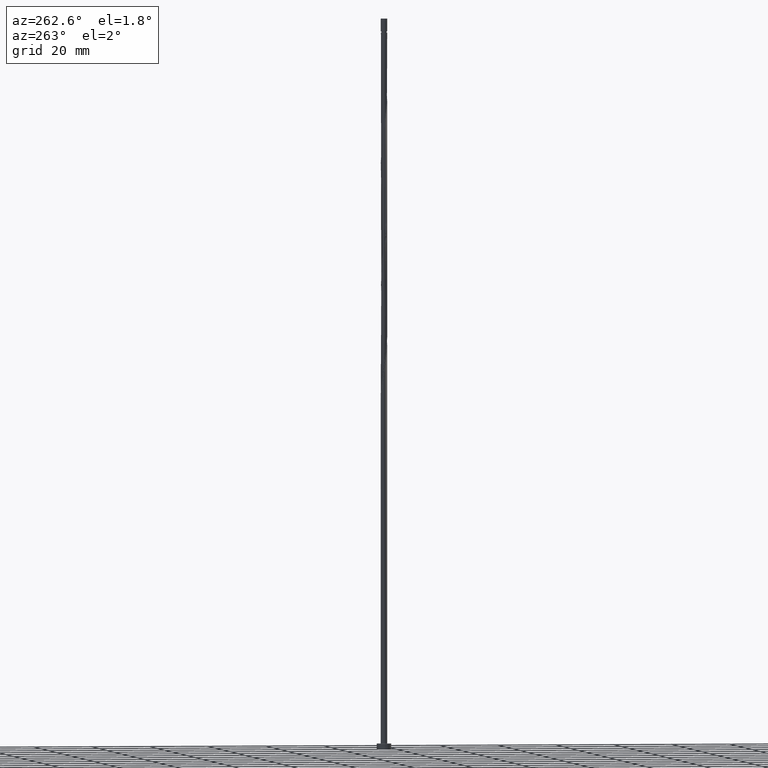
[diagram: clean part render]
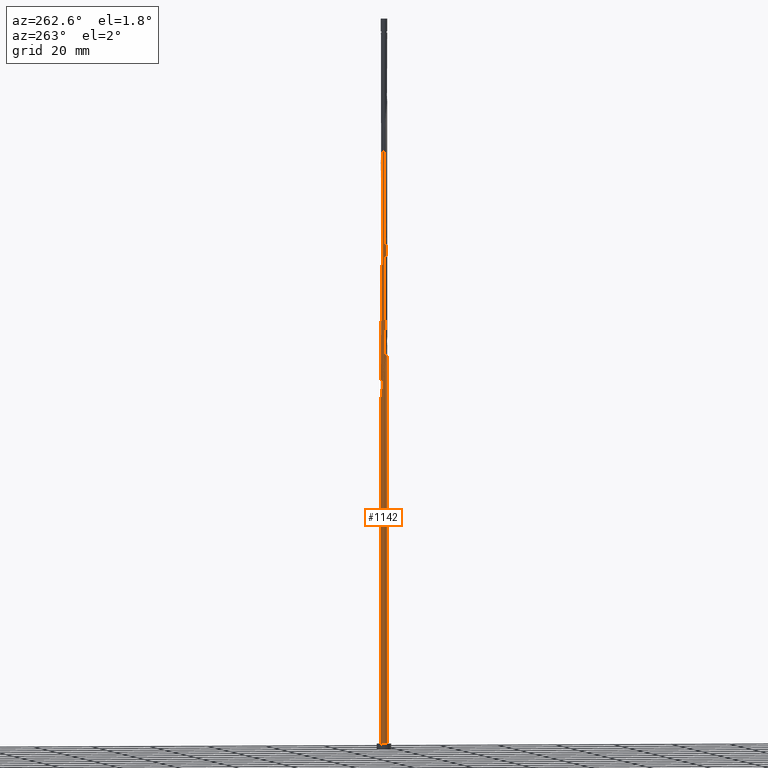
[diagram: same view with one face highlighted and labeled with its STEP entity id]
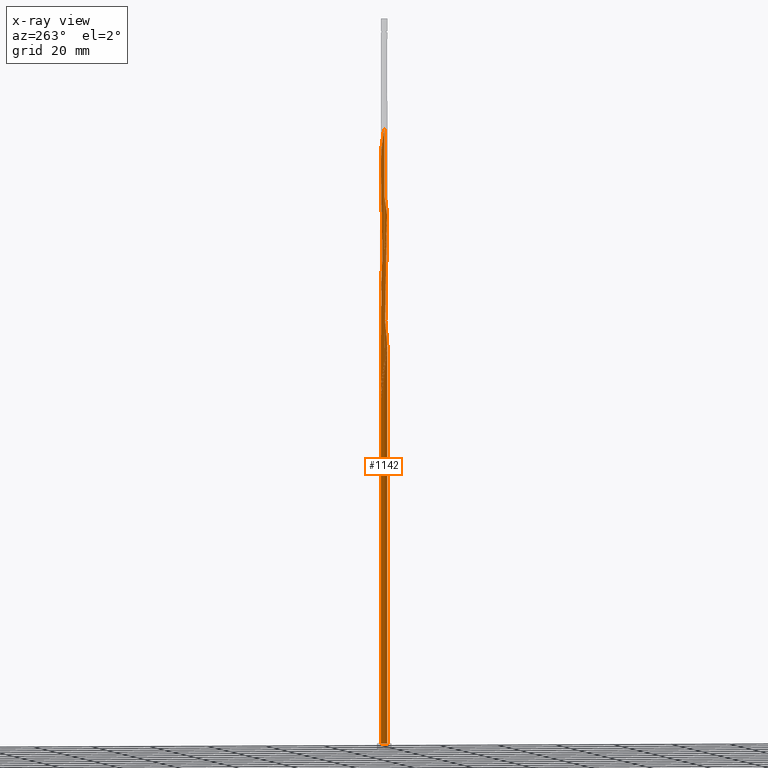
[diagram: x-ray of the same camera — body ghosted, the highlighted face saturated]
A machine part, auxiliary view. The second image highlights one B-rep face of the part: STEP entity #1142.
The next image is the same camera in x-ray: the body ghosted, the highlighted face saturated — about 0% of this face is hidden behind the body in this view.
In plain terms, the highlighted cylindrical surface (bore or boss wall) has radius 1.1 mm, axis along (-0, -0, -1).
Its self-contained STEP definition (entity closure, byte-faithful):
#5 = CARTESIAN_POINT ( 'NONE',  ( -1.100000000000002087, -7.216240342310404212E-16, 212.6281750762028935 ) ) ;
#15 = CARTESIAN_POINT ( 'NONE',  ( -0.08800433824986052256, 1.104578936536840139, 202.7381482341460242 ) ) ;
#16 = VECTOR ( 'NONE', #84, 1000.000000000000000 ) ;
#22 = VERTEX_POINT ( 'NONE', #221 ) ;
#57 = CARTESIAN_POINT ( 'NONE',  ( -0.7628288044120180578, -0.7925226906274263072, 134.6291738751716878 ) ) ;
#66 = CARTESIAN_POINT ( 'NONE',  ( 0.2188972361634580477, -1.078000000000001624, 141.0394302854280681 ) ) ;
#74 = CARTESIAN_POINT ( 'NONE',  ( -0.3071477027034155149, -1.056248213595657459, 137.8343020802998637 ) ) ;
#84 = DIRECTION ( 'NONE',  ( -0.000000000000000000, -0.000000000000000000, -1.000000000000000000 ) ) ;
#87 = CARTESIAN_POINT ( 'NONE',  ( -1.064006015414472595, 0.3094036033298087074, 169.0843020802998637 ) ) ;
#95 = CARTESIAN_POINT ( 'NONE',  ( -0.1788959498336609999, -1.093542696800067437, 180.3022507982486218 ) ) ;
#101 = CARTESIAN_POINT ( 'NONE',  ( -1.085917561661207564, -0.2205049656298697092, 172.2894302854280397 ) ) ;
#109 = CARTESIAN_POINT ( 'NONE',  ( 0.4353994555731701133, 1.018953730391247703, 157.8663533623512478 ) ) ;
#114 = LINE ( 'NONE', #1030, #1374 ) ;
#120 = CARTESIAN_POINT ( 'NONE',  ( 0.9303254799112119500, 0.5869365395236323391, 195.5266097726075429 ) ) ;
#121 = DIRECTION ( 'NONE',  ( -0.000000000000000000, -0.000000000000000000, -1.000000000000000000 ) ) ;
#126 = CARTESIAN_POINT ( 'NONE',  ( -0.9590428054949424741, 0.5550462033200856959, 209.1484046444024614 ) ) ;
#152 = CARTESIAN_POINT ( 'NONE',  ( -1.085569539318544940, 0.1775915969400755356, 128.2189174649152505 ) ) ;
#173 = CARTESIAN_POINT ( 'NONE',  ( -0.4353994555731699467, -1.018953730391247703, 137.0330200290178482 ) ) ;
#177 = VERTEX_POINT ( 'NONE', #1687 ) ;
#182 = CARTESIAN_POINT ( 'NONE',  ( -1.001592478565782152, -0.4739745747106117180, 132.2253277213254989 ) ) ;
#186 = CARTESIAN_POINT ( 'NONE',  ( -0.4705187664120752400, 0.9942897417021168138, 121.8086610546588560 ) ) ;
#214 = EDGE_CURVE ( 'NONE', #177, #551, #492, .T. ) ;
#218 = CARTESIAN_POINT ( 'NONE',  ( -1.011524410454707423, 0.4322249033249474515, 168.2830200290178482 ) ) ;
#221 = CARTESIAN_POINT ( 'NONE',  ( -1.100000000000001865, -1.106739451463149244E-15, 131.9506854946532712 ) ) ;
#222 = DIRECTION ( 'NONE',  ( -1.000000000000000000, 0.000000000000000000, 0.000000000000000000 ) ) ;
#224 = ORIENTED_EDGE ( 'NONE', *, *, #214, .T. ) ;
#226 = CARTESIAN_POINT ( 'NONE',  ( 0.7628288044120180578, 0.7925226906274259742, 155.4625072085050590 ) ) ;
#237 = AXIS2_PLACEMENT_3D ( 'NONE', #998, #1405, #222 ) ;
#240 = CARTESIAN_POINT ( 'NONE',  ( 0.5912473987470951986, -0.9371584199410714078, 185.1099431059408857 ) ) ;
#250 = CARTESIAN_POINT ( 'NONE',  ( -0.5509992915702817129, 0.9520503036547238729, 125.0137892597870888 ) ) ;
#260 = CARTESIAN_POINT ( 'NONE',  ( 0.08800433824986110543, 1.104578936536840139, 121.0073790033768120 ) ) ;
#264 = EDGE_CURVE ( 'NONE', #1356, #1663, #114, .T. ) ;
#285 = EDGE_CURVE ( 'NONE', #22, #551, #683, .T. ) ;
#308 = CARTESIAN_POINT ( 'NONE',  ( -1.100000000000002087, 1.323600560195794635E-15, 129.2948417428695507 ) ) ;
#319 = CARTESIAN_POINT ( 'NONE',  ( 0.6947954562229508024, -0.8527949777126651032, 144.2445584905562441 ) ) ;
#350 = CARTESIAN_POINT ( 'NONE',  ( 0.9590428054949423631, -0.5550462033200859180, 146.6484046444024614 ) ) ;
#360 = CARTESIAN_POINT ( 'NONE',  ( -0.7628288044120180578, -0.7925226906274263072, 176.2958405418383165 ) ) ;
#365 = CYLINDRICAL_SURFACE ( 'NONE', #237, 1.100000000000000089 ) ;
#366 = ORIENTED_EDGE ( 'NONE', *, *, #829, .F. ) ;
#367 = CARTESIAN_POINT ( 'NONE',  ( 1.085569539318544940, -0.1775915969400755912, 190.7189174649152505 ) ) ;
#373 = EDGE_CURVE ( 'NONE', #1356, #1024, #973, .T. ) ;
#380 = CARTESIAN_POINT ( 'NONE',  ( 0.9590428054949423631, -0.5550462033200859180, 188.3150713110691754 ) ) ;
#387 = ORIENTED_EDGE ( 'NONE', *, *, #373, .F. ) ;
#389 = CARTESIAN_POINT ( 'NONE',  ( -0.5509992915702820460, -0.9520503036547232067, 177.8984046444024330 ) ) ;
#395 = ORIENTED_EDGE ( 'NONE', *, *, #285, .F. ) ;
#402 = CARTESIAN_POINT ( 'NONE',  ( 0.2188972361634584640, 1.078000000000001846, 120.2060969520947538 ) ) ;
#408 = AXIS2_PLACEMENT_3D ( 'NONE', #1714, #1595, #774 ) ;
#411 = CARTESIAN_POINT ( 'NONE',  ( -1.001592478565782596, 0.4739745747106118290, 129.0201995161973230 ) ) ;
#420 = CARTESIAN_POINT ( 'NONE',  ( -1.085917561661207564, -0.2205049656298697092, 130.6227636187613825 ) ) ;
#444 = CIRCLE ( 'NONE', #935, 1.100000000000000089 ) ;
#467 = CARTESIAN_POINT ( 'NONE',  ( 0.8786931595968741071, -0.6617388694021727469, 145.8471225931203890 ) ) ;
#470 = EDGE_LOOP ( 'NONE', ( #366, #387, #1218, #1193, #1582, #987, #1340, #224, #395 ) ) ;
#489 = CARTESIAN_POINT ( 'NONE',  ( -0.8786931595968743292, 0.6617388694021726359, 166.6804559264537602 ) ) ;
#492 = CIRCLE ( 'NONE', #408, 1.100000000000000089 ) ;
#499 = CARTESIAN_POINT ( 'NONE',  ( 0.7628288044120180578, 0.7925226906274259742, 197.1291738751716878 ) ) ;
#510 = CARTESIAN_POINT ( 'NONE',  ( -0.6665991275673939231, -0.8851468769181990437, 177.0971225931203605 ) ) ;
#519 = CARTESIAN_POINT ( 'NONE',  ( -0.5912473987470956427, 0.9371584199410714078, 164.2766097726075145 ) ) ;
#533 = CARTESIAN_POINT ( 'NONE',  ( -1.085917561661207564, 0.2205049656298699312, 130.6227636187614110 ) ) ;
#537 = CARTESIAN_POINT ( 'NONE',  ( -0.2188972361634579367, 1.078000000000001624, 203.5394302854280966 ) ) ;
#551 = VERTEX_POINT ( 'NONE', #1263 ) ;
#555 = CARTESIAN_POINT ( 'NONE',  ( -1.011524410454707423, 0.4322249033249474515, 209.9496866956845054 ) ) ;
#558 = CARTESIAN_POINT ( 'NONE',  ( -0.5912473987470956427, 0.9371584199410714078, 122.6099431059409000 ) ) ;
#567 = CARTESIAN_POINT ( 'NONE',  ( -0.7983435136988059622, 0.7684315354842591317, 124.2125072085050022 ) ) ;
#595 = CARTESIAN_POINT ( 'NONE',  ( 0.7983435136988059622, -0.7684315354842593537, 145.0458405418383165 ) ) ;
#599 = CARTESIAN_POINT ( 'NONE',  ( -1.100000000000001865, 0.08938208239075068340, 128.7551410055212386 ) ) ;
#605 = CARTESIAN_POINT ( 'NONE',  ( -0.9303254799112120610, -0.5869365395236322280, 133.0266097726075714 ) ) ;
#620 = CARTESIAN_POINT ( 'NONE',  ( -1.085569539318544940, 0.1775915969400755356, 169.8855841315819362 ) ) ;
#626 = CARTESIAN_POINT ( 'NONE',  ( 1.096525312441912314, 0.08736268753976340895, 192.3214815674793954 ) ) ;
#632 = LINE ( 'NONE', #1682, #16 ) ;
#633 = CARTESIAN_POINT ( 'NONE',  ( -0.8590584812566417483, -0.6998985043366530157, 175.4945584905562725 ) ) ;
#644 = CARTESIAN_POINT ( 'NONE',  ( 0.1788959498336611109, 1.093542696800067437, 159.4689174649152221 ) ) ;
#647 = CARTESIAN_POINT ( 'NONE',  ( -1.096525312441912758, 0.08736268753976413060, 131.4240456700434549 ) ) ;
#652 = CARTESIAN_POINT ( 'NONE',  ( -0.08800433824986052256, 1.104578936536840139, 161.0714815674793101 ) ) ;
#656 = CARTESIAN_POINT ( 'NONE',  ( -0.04544580579189982927, 1.099060816668453899, 121.8086610546588560 ) ) ;
#661 = CARTESIAN_POINT ( 'NONE',  ( -1.100000000000001199, 0.08938208239075497163, 212.0884743388545246 ) ) ;
#663 = CARTESIAN_POINT ( 'NONE',  ( -1.100000000000001865, 0.04375044337044674964, 131.6865145790202973 ) ) ;
#676 = CARTESIAN_POINT ( 'NONE',  ( -1.064006015414472595, 0.3094036033298087074, 210.7509687469665494 ) ) ;
#683 =( BOUNDED_CURVE ( )  B_SPLINE_CURVE ( 2, ( #915, #663, #647, #533, #1191, #411, #901, #1048, #933, #1166, #250, #1568, #1585, #1694, #656, #260, #402 ),
 .UNSPECIFIED., .F., .T. ) 
 B_SPLINE_CURVE_WITH_KNOTS ( ( 3, 2, 2, 2, 2, 2, 2, 2, 3 ),
 ( 0.9295271625973833274, 0.9326923076923077094, 0.9423076923076922906, 0.9519230769230768718, 0.9615384615384615641, 0.9711538461538461453, 0.9807692307692307265, 0.9903846153846154188, 1.000000000000000000 ),
 .UNSPECIFIED. ) 
 CURVE ( )  GEOMETRIC_REPRESENTATION_ITEM ( )  RATIONAL_B_SPLINE_CURVE ( ( 0.9061636035683366952, 0.9069090390691254555, 0.9090909090909821133, 0.9024626128164852101, 0.9090909090909821133, 0.9024626128164852101, 0.9090909090909821133, 0.9024626128164852101, 0.9090909090909821133, 0.9024626128164852101, 0.9090909090909821133, 0.9024626128164852101, 0.9090909090909821133, 0.9024626128164852101, 0.9090909090909821133, 0.9024626128164852101, 0.9090909090909821133 ) ) 
 REPRESENTATION_ITEM ( '' )  );
#684 = CARTESIAN_POINT ( 'NONE',  ( 0.3071477027034160145, 1.056248213595657237, 200.3343020802998637 ) ) ;
#686 = CARTESIAN_POINT ( 'NONE',  ( -1.100000000000002087, 1.323600560195794635E-15, 129.2948417428695507 ) ) ;
#692 = CARTESIAN_POINT ( 'NONE',  ( -0.3497901340770550593, 1.051421063463162442, 204.3407123367101406 ) ) ;
#727 = CARTESIAN_POINT ( 'NONE',  ( 1.085917561661207564, 0.2205049656298696537, 151.4560969520947538 ) ) ;
#736 = CARTESIAN_POINT ( 'NONE',  ( 1.107133063222617286, -0.04577959055034185043, 149.8535328495306658 ) ) ;
#743 = DIRECTION ( 'NONE',  ( 1.000000000000000000, 0.000000000000000000, 0.000000000000000000 ) ) ;
#748 = CARTESIAN_POINT ( 'NONE',  ( -0.2188972361634579367, 1.078000000000001624, 161.8727636187614394 ) ) ;
#754 = CARTESIAN_POINT ( 'NONE',  ( 0.8786931595968741071, -0.6617388694021727469, 187.5137892597870746 ) ) ;
#764 = CARTESIAN_POINT ( 'NONE',  ( 1.107133063222617286, -0.04577959055034185043, 191.5201995161973514 ) ) ;
#774 = DIRECTION ( 'NONE',  ( 0.000000000000000000, 1.000000000000000000, -1.009293658750142218E-13 ) ) ;
#777 = CARTESIAN_POINT ( 'NONE',  ( 1.064006015414472150, -0.3094036033298094290, 189.9176354136331781 ) ) ;
#801 = CARTESIAN_POINT ( 'NONE',  ( -0.8786931595968743292, 0.6617388694021726359, 208.3471225931204742 ) ) ;
#811 = CARTESIAN_POINT ( 'NONE',  ( -0.6947954562229508024, 0.8527949777126651032, 123.4112251572229582 ) ) ;
#819 = AXIS2_PLACEMENT_3D ( 'NONE', #1049, #1586, #923 ) ;
#829 = EDGE_CURVE ( 'NONE', #1024, #22, #632, .T. ) ;
#835 = CARTESIAN_POINT ( 'NONE',  ( -1.043755020113495080, -0.3472397701702404915, 131.4240456700434549 ) ) ;
#849 = CARTESIAN_POINT ( 'NONE',  ( -0.2188972361634579089, 1.078000000000001624, 120.2060969520947538 ) ) ;
#866 = CARTESIAN_POINT ( 'NONE',  ( -0.5509992915702820460, -0.9520503036547232067, 136.2317379777357473 ) ) ;
#875 = CARTESIAN_POINT ( 'NONE',  ( 1.064006015414472150, -0.3094036033298094290, 148.2509687469665494 ) ) ;
#882 = CARTESIAN_POINT ( 'NONE',  ( 0.3497901340770547818, -1.051421063463162442, 183.5073790033767978 ) ) ;
#889 = CARTESIAN_POINT ( 'NONE',  ( 1.100000000000000089, 0.000000000000000000, 2.000000000000000000 ) ) ;
#892 = CARTESIAN_POINT ( 'NONE',  ( 0.9303254799112119500, 0.5869365395236323391, 153.8599431059409142 ) ) ;
#901 = CARTESIAN_POINT ( 'NONE',  ( -0.9303254799112120610, 0.5869365395236326721, 128.2189174649152505 ) ) ;
#915 = CARTESIAN_POINT ( 'NONE',  ( -1.100000000000001865, -1.106739451463149244E-15, 131.9506854946532712 ) ) ;
#919 =( BOUNDED_CURVE ( )  B_SPLINE_CURVE ( 2, ( #849, #1238, #186, #558, #811, #567, #1086, #1368, #1225, #1122, #152, #599, #686 ),
 .UNSPECIFIED., .F., .T. ) 
 B_SPLINE_CURVE_WITH_KNOTS ( ( 3, 2, 2, 2, 2, 2, 3 ),
 ( 0.000000000000000000, 0.009615384615384581224, 0.01923076923076927347, 0.02884615384615385469, 0.03846153846153843592, 0.04807692307692312816, 0.05452716259738319554 ),
 .UNSPECIFIED. ) 
 CURVE ( )  GEOMETRIC_REPRESENTATION_ITEM ( )  RATIONAL_B_SPLINE_CURVE ( ( 0.9090909090909813361, 0.9024626128164844330, 0.9090909090909813361, 0.9024626128164844330, 0.9090909090909813361, 0.9024626128164844330, 0.9090909090909813361, 0.9024626128164844330, 0.9090909090909813361, 0.9024626128164844330, 0.9090909090909813361, 0.9046444828383412018, 0.9061636035683358070 ) ) 
 REPRESENTATION_ITEM ( '' )  );
#923 = DIRECTION ( 'NONE',  ( 1.000000000000000000, 0.000000000000000000, 0.000000000000000000 ) ) ;
#933 = CARTESIAN_POINT ( 'NONE',  ( -0.7628288044120180578, 0.7925226906274266403, 126.6163533623511910 ) ) ;
#935 = AXIS2_PLACEMENT_3D ( 'NONE', #1140, #1015, #743 ) ;
#940 = CARTESIAN_POINT ( 'NONE',  ( -1.096525312441912314, -0.08736268753976379753, 129.8214815674793670 ) ) ;
#941 = CARTESIAN_POINT ( 'NONE',  ( -1.100000000000000089, 0.000000000000000000, 2.000000000000000000 ) ) ;
#973 =( BOUNDED_CURVE ( )  B_SPLINE_CURVE ( 2, ( #308, #1135, #940, #420, #835, #182, #605, #1666, #57, #1363, #866, #173, #74, #1128, #1233, #1109, #66, #1539, #1398, #1510, #319, #595, #467, #350, #1659, #875, #980, #736, #1522, #727, #1255, #1264, #892, #1423, #226, #1291, #1034, #109, #1676, #644, #1171, #652, #748, #1670, #1164, #519, #1558, #1275, #489, #1690, #218, #87, #620, #1699, #1004, #101, #1286, #1574, #1143, #633, #360, #510, #389, #1547, #1018, #95, #1026, #1417, #1012, #882, #1565, #240, #1407, #1553, #754, #380, #1438, #777, #367, #764, #626, #1301, #1150, #1154, #120, #1685, #499, #1333, #1718, #1188, #684, #1461, #1045, #15, #537, #692, #1081, #1591, #1214, #1618, #801, #126, #555, #676, #1196, #661, #5 ),
 .UNSPECIFIED., .F., .T. ) 
 B_SPLINE_CURVE_WITH_KNOTS ( ( 3, 2, 2, 2, 2, 2, 2, 2, 2, 2, 2, 2, 2, 2, 2, 2, 2, 2, 2, 2, 2, 2, 2, 2, 2, 2, 2, 2, 2, 2, 2, 2, 2, 2, 2, 2, 2, 2, 2, 2, 2, 2, 2, 2, 2, 2, 2, 2, 2, 2, 2, 2, 2, 3 ),
 ( 0.05452716259738319554, 0.05769230769230770939, 0.06730769230769229061, 0.07692307692307687184, 0.08653846153846156408, 0.09615384615384614531, 0.1057692307692307265, 0.1153846153846154188, 0.1250000000000000000, 0.1346153846153845812, 0.1442307692307692735, 0.1538461538461538547, 0.1634615384615384359, 0.1730769230769231282, 0.1826923076923077094, 0.1923076923076922906, 0.2019230769230768718, 0.2115384615384615641, 0.2211538461538461453, 0.2307692307692307265, 0.2403846153846154188, 0.2500000000000000000, 0.2596153846153845812, 0.2692307692307692735, 0.2788461538461538547, 0.2884615384615384359, 0.2980769230769231282, 0.3076923076923077094, 0.3173076923076922906, 0.3269230769230768718, 0.3365384615384615641, 0.3461538461538461453, 0.3557692307692307265, 0.3653846153846154188, 0.3750000000000000000, 0.3846153846153845812, 0.3942307692307692735, 0.4038461538461538547, 0.4134615384615384359, 0.4230769230769231282, 0.4326923076923077094, 0.4423076923076922906, 0.4519230769230768718, 0.4615384615384615641, 0.4711538461538461453, 0.4807692307692307265, 0.4903846153846154188, 0.5000000000000000000, 0.5096153846153845812, 0.5192307692307691624, 0.5288461538461538547, 0.5384615384615384359, 0.5480769230769231282, 0.5545271625973828833 ),
 .UNSPECIFIED. ) 
 CURVE ( )  GEOMETRIC_REPRESENTATION_ITEM ( )  RATIONAL_B_SPLINE_CURVE ( ( 0.9061636035683358070, 0.9069090390691245673, 0.9090909090909813361, 0.9024626128164844330, 0.9090909090909813361, 0.9024626128164844330, 0.9090909090909813361, 0.9024626128164844330, 0.9090909090909813361, 0.9024626128164844330, 0.9090909090909813361, 0.9024626128164844330, 0.9090909090909813361, 0.9024626128164844330, 0.9090909090909813361, 0.9024626128164844330, 0.9090909090909813361, 0.9024626128164844330, 0.9090909090909813361, 0.9024626128164844330, 0.9090909090909813361, 0.9024626128164844330, 0.9090909090909813361, 0.9024626128164844330, 0.9090909090909813361, 0.9024626128164844330, 0.9090909090909813361, 0.9024626128164844330, 0.9090909090909813361, 0.9024626128164844330, 0.9090909090909813361, 0.9024626128164844330, 0.9090909090909813361, 0.9024626128164844330, 0.9090909090909813361, 0.9024626128164844330, 0.9090909090909813361, 0.9024626128164844330, 0.9090909090909813361, 0.9024626128164844330, 0.9090909090909813361, 0.9024626128164844330, 0.9090909090909813361, 0.9024626128164844330, 0.9090909090909813361, 0.9024626128164844330, 0.9090909090909813361, 0.9024626128164844330, 0.9090909090909813361, 0.9024626128164844330, 0.9090909090909813361, 0.9024626128164844330, 0.9090909090909813361, 0.9024626128164844330, 0.9090909090909813361, 0.9024626128164844330, 0.9090909090909813361, 0.9024626128164844330, 0.9090909090909813361, 0.9024626128164844330, 0.9090909090909813361, 0.9024626128164844330, 0.9090909090909813361, 0.9024626128164844330, 0.9090909090909813361, 0.9024626128164844330, 0.9090909090909813361, 0.9024626128164844330, 0.9090909090909813361, 0.9024626128164844330, 0.9090909090909813361, 0.9024626128164844330, 0.9090909090909813361, 0.9024626128164844330, 0.9090909090909813361, 0.9024626128164844330, 0.9090909090909813361, 0.9024626128164844330, 0.9090909090909813361, 0.9024626128164844330, 0.9090909090909813361, 0.9024626128164844330, 0.9090909090909813361, 0.9024626128164844330, 0.9090909090909813361, 0.9024626128164844330, 0.9090909090909813361, 0.9024626128164844330, 0.9090909090909813361, 0.9024626128164844330, 0.9090909090909813361, 0.9024626128164844330, 0.9090909090909813361, 0.9024626128164844330, 0.9090909090909813361, 0.9024626128164844330, 0.9090909090909813361, 0.9024626128164844330, 0.9090909090909813361, 0.9024626128164844330, 0.9090909090909813361, 0.9024626128164844330, 0.9090909090909813361, 0.9024626128164844330, 0.9090909090909813361, 0.9046444828383413128, 0.9061636035683356960 ) ) 
 REPRESENTATION_ITEM ( '' )  );
#980 = CARTESIAN_POINT ( 'NONE',  ( 1.085569539318544940, -0.1775915969400755912, 149.0522507982486502 ) ) ;
#987 = ORIENTED_EDGE ( 'NONE', *, *, #264, .F. ) ;
#998 = CARTESIAN_POINT ( 'NONE',  ( 0.000000000000000000, 0.000000000000000000, 250.0000000000000000 ) ) ;
#1003 = CARTESIAN_POINT ( 'NONE',  ( -1.100000000000002087, -7.216240342310404212E-16, 212.6281750762029219 ) ) ;
#1004 = CARTESIAN_POINT ( 'NONE',  ( -1.096525312441912314, -0.08736268753976379753, 171.4881482341460810 ) ) ;
#1012 = CARTESIAN_POINT ( 'NONE',  ( 0.2188972361634580477, -1.078000000000001624, 182.7060969520947538 ) ) ;
#1015 = DIRECTION ( 'NONE',  ( 0.000000000000000000, 0.000000000000000000, 1.000000000000000000 ) ) ;
#1018 = CARTESIAN_POINT ( 'NONE',  ( -0.3071477027034155149, -1.056248213595657459, 179.5009687469665209 ) ) ;
#1023 = EDGE_CURVE ( 'NONE', #1663, #1153, #444, .T. ) ;
#1024 = VERTEX_POINT ( 'NONE', #1003 ) ;
#1026 = CARTESIAN_POINT ( 'NONE',  ( -0.04544580579190018316, -1.099060816668453899, 181.1035328495306942 ) ) ;
#1030 = CARTESIAN_POINT ( 'NONE',  ( -1.100000000000000089, 0.000000000000000000, 250.0000000000000000 ) ) ;
#1034 = CARTESIAN_POINT ( 'NONE',  ( 0.5509992915702820460, 0.9520503036547232067, 157.0650713110691186 ) ) ;
#1045 = CARTESIAN_POINT ( 'NONE',  ( 0.04544580579190084235, 1.099060816668453899, 201.9368661828640086 ) ) ;
#1048 = CARTESIAN_POINT ( 'NONE',  ( -0.8590584812566419703, 0.6998985043366533487, 127.4176354136332350 ) ) ;
#1049 = CARTESIAN_POINT ( 'NONE',  ( 0.000000000000000000, 0.000000000000000000, 2.000000000000000000 ) ) ;
#1081 = CARTESIAN_POINT ( 'NONE',  ( -0.4705187664120752400, 0.9942897417021168138, 205.1419943879921846 ) ) ;
#1086 = CARTESIAN_POINT ( 'NONE',  ( -0.8786931595968743292, 0.6617388694021726359, 125.0137892597870604 ) ) ;
#1109 = CARTESIAN_POINT ( 'NONE',  ( 0.08800433824986064746, -1.104578936536840139, 140.2381482341460242 ) ) ;
#1122 = CARTESIAN_POINT ( 'NONE',  ( -1.064006015414472595, 0.3094036033298087074, 127.4176354136332066 ) ) ;
#1128 = CARTESIAN_POINT ( 'NONE',  ( -0.1788959498336609999, -1.093542696800067437, 138.6355841315819077 ) ) ;
#1135 = CARTESIAN_POINT ( 'NONE',  ( -1.100000000000001865, -0.04375044337044468878, 129.5590126585024962 ) ) ;
#1140 = CARTESIAN_POINT ( 'NONE',  ( 0.000000000000000000, 0.000000000000000000, 2.000000000000000000 ) ) ;
#1142 = ADVANCED_FACE ( 'NONE', ( #1270 ), #365, .T. ) ;
#1143 = CARTESIAN_POINT ( 'NONE',  ( -0.9303254799112120610, -0.5869365395236322280, 174.6932764392742570 ) ) ;
#1150 = CARTESIAN_POINT ( 'NONE',  ( 1.043755020113495080, 0.3472397701702399919, 193.9240456700434834 ) ) ;
#1153 = VERTEX_POINT ( 'NONE', #889 ) ;
#1154 = CARTESIAN_POINT ( 'NONE',  ( 1.001592478565782152, 0.4739745747106112184, 194.7253277213254705 ) ) ;
#1164 = CARTESIAN_POINT ( 'NONE',  ( -0.4705187664120752400, 0.9942897417021168138, 163.4753277213255274 ) ) ;
#1166 = CARTESIAN_POINT ( 'NONE',  ( -0.6665991275673937011, 0.8851468769181998208, 125.8150713110691186 ) ) ;
#1171 = CARTESIAN_POINT ( 'NONE',  ( 0.04544580579190084235, 1.099060816668453899, 160.2701995161973230 ) ) ;
#1175 = CARTESIAN_POINT ( 'NONE',  ( -1.100000000000002087, 1.323600560195794635E-15, 129.2948417428695507 ) ) ;
#1188 = CARTESIAN_POINT ( 'NONE',  ( 0.4353994555731701133, 1.018953730391247703, 199.5330200290178198 ) ) ;
#1191 = CARTESIAN_POINT ( 'NONE',  ( -1.043755020113495302, 0.3472397701702409356, 129.8214815674793670 ) ) ;
#1193 = ORIENTED_EDGE ( 'NONE', *, *, #1023, .T. ) ;
#1196 = CARTESIAN_POINT ( 'NONE',  ( -1.085569539318544940, 0.1775915969400755356, 211.5522507982486218 ) ) ;
#1214 = CARTESIAN_POINT ( 'NONE',  ( -0.6947954562229508024, 0.8527949777126651032, 206.7445584905562725 ) ) ;
#1218 = ORIENTED_EDGE ( 'NONE', *, *, #264, .T. ) ;
#1225 = CARTESIAN_POINT ( 'NONE',  ( -1.011524410454707423, 0.4322249033249474515, 126.6163533623511626 ) ) ;
#1233 = CARTESIAN_POINT ( 'NONE',  ( -0.04544580579190018316, -1.099060816668453899, 139.4368661828639802 ) ) ;
#1238 = CARTESIAN_POINT ( 'NONE',  ( -0.3497901340770550593, 1.051421063463162442, 121.0073790033768120 ) ) ;
#1255 = CARTESIAN_POINT ( 'NONE',  ( 1.043755020113495080, 0.3472397701702399919, 152.2573790033768262 ) ) ;
#1263 = CARTESIAN_POINT ( 'NONE',  ( 0.2188972361634584640, 1.078000000000001846, 120.2060969520947538 ) ) ;
#1264 = CARTESIAN_POINT ( 'NONE',  ( 1.001592478565782152, 0.4739745747106112184, 153.0586610546588986 ) ) ;
#1270 = FACE_OUTER_BOUND ( 'NONE', #470, .T. ) ;
#1275 = CARTESIAN_POINT ( 'NONE',  ( -0.7983435136988059622, 0.7684315354842591317, 165.8791738751716593 ) ) ;
#1286 = CARTESIAN_POINT ( 'NONE',  ( -1.043755020113495080, -0.3472397701702404915, 173.0907123367101690 ) ) ;
#1291 = CARTESIAN_POINT ( 'NONE',  ( 0.6665991275673944783, 0.8851468769181987106, 156.2637892597870746 ) ) ;
#1301 = CARTESIAN_POINT ( 'NONE',  ( 1.085917561661207564, 0.2205049656298696537, 193.1227636187613541 ) ) ;
#1333 = CARTESIAN_POINT ( 'NONE',  ( 0.6665991275673944783, 0.8851468769181987106, 197.9304559264536749 ) ) ;
#1340 = ORIENTED_EDGE ( 'NONE', *, *, #1472, .F. ) ;
#1356 = VERTEX_POINT ( 'NONE', #1175 ) ;
#1363 = CARTESIAN_POINT ( 'NONE',  ( -0.6665991275673939231, -0.8851468769181990437, 135.4304559264537318 ) ) ;
#1368 = CARTESIAN_POINT ( 'NONE',  ( -0.9590428054949424741, 0.5550462033200856959, 125.8150713110691186 ) ) ;
#1374 = VECTOR ( 'NONE', #121, 1000.000000000000000 ) ;
#1398 = CARTESIAN_POINT ( 'NONE',  ( 0.4705187664120749624, -0.9942897417021169248, 142.6419943879921277 ) ) ;
#1405 = DIRECTION ( 'NONE',  ( -0.000000000000000000, -0.000000000000000000, -1.000000000000000000 ) ) ;
#1407 = CARTESIAN_POINT ( 'NONE',  ( 0.6947954562229508024, -0.8527949777126651032, 185.9112251572229866 ) ) ;
#1417 = CARTESIAN_POINT ( 'NONE',  ( 0.08800433824986064746, -1.104578936536840139, 181.9048149008127098 ) ) ;
#1423 = CARTESIAN_POINT ( 'NONE',  ( 0.8590584812566420814, 0.6998985043366526826, 154.6612251572229582 ) ) ;
#1431 = EDGE_CURVE ( 'NONE', #1153, #1663, #1573, .T. ) ;
#1438 = CARTESIAN_POINT ( 'NONE',  ( 1.011524410454707423, -0.4322249033249474515, 189.1163533623512478 ) ) ;
#1461 = CARTESIAN_POINT ( 'NONE',  ( 0.1788959498336611109, 1.093542696800067437, 201.1355841315819646 ) ) ;
#1472 = EDGE_CURVE ( 'NONE', #177, #1356, #919, .T. ) ;
#1510 = CARTESIAN_POINT ( 'NONE',  ( 0.5912473987470951986, -0.9371584199410714078, 143.4432764392742286 ) ) ;
#1522 = CARTESIAN_POINT ( 'NONE',  ( 1.096525312441912314, 0.08736268753976340895, 150.6548149008127382 ) ) ;
#1539 = CARTESIAN_POINT ( 'NONE',  ( 0.3497901340770547818, -1.051421063463162442, 141.8407123367101121 ) ) ;
#1547 = CARTESIAN_POINT ( 'NONE',  ( -0.4353994555731699467, -1.018953730391247703, 178.6996866956844769 ) ) ;
#1553 = CARTESIAN_POINT ( 'NONE',  ( 0.7983435136988059622, -0.7684315354842593537, 186.7125072085050022 ) ) ;
#1558 = CARTESIAN_POINT ( 'NONE',  ( -0.6947954562229508024, 0.8527949777126651032, 165.0778918238896154 ) ) ;
#1565 = CARTESIAN_POINT ( 'NONE',  ( 0.4705187664120749624, -0.9942897417021169248, 184.3086610546588417 ) ) ;
#1568 = CARTESIAN_POINT ( 'NONE',  ( -0.4353994555731698357, 1.018953730391247925, 124.2125072085050022 ) ) ;
#1573 = CIRCLE ( 'NONE', #819, 1.100000000000000089 ) ;
#1574 = CARTESIAN_POINT ( 'NONE',  ( -1.001592478565782152, -0.4739745747106117180, 173.8919943879922130 ) ) ;
#1582 = ORIENTED_EDGE ( 'NONE', *, *, #1431, .T. ) ;
#1585 = CARTESIAN_POINT ( 'NONE',  ( -0.3071477027034154039, 1.056248213595657903, 123.4112251572230008 ) ) ;
#1586 = DIRECTION ( 'NONE',  ( 0.000000000000000000, 0.000000000000000000, 1.000000000000000000 ) ) ;
#1591 = CARTESIAN_POINT ( 'NONE',  ( -0.5912473987470956427, 0.9371584199410714078, 205.9432764392741717 ) ) ;
#1595 = DIRECTION ( 'NONE',  ( -1.400676323190717978E-29, -9.462128050782594019E-14, -1.000000000000000000 ) ) ;
#1618 = CARTESIAN_POINT ( 'NONE',  ( -0.7983435136988059622, 0.7684315354842591317, 207.5458405418383165 ) ) ;
#1659 = CARTESIAN_POINT ( 'NONE',  ( 1.011524410454707423, -0.4322249033249474515, 147.4496866956844769 ) ) ;
#1663 = VERTEX_POINT ( 'NONE', #941 ) ;
#1666 = CARTESIAN_POINT ( 'NONE',  ( -0.8590584812566417483, -0.6998985043366530157, 133.8278918238896154 ) ) ;
#1670 = CARTESIAN_POINT ( 'NONE',  ( -0.3497901340770550593, 1.051421063463162442, 162.6740456700434834 ) ) ;
#1676 = CARTESIAN_POINT ( 'NONE',  ( 0.3071477027034160145, 1.056248213595657237, 158.6676354136332066 ) ) ;
#1682 = CARTESIAN_POINT ( 'NONE',  ( -1.100000000000000089, 0.000000000000000000, 250.0000000000000000 ) ) ;
#1685 = CARTESIAN_POINT ( 'NONE',  ( 0.8590584812566420814, 0.6998985043366526826, 196.3278918238896154 ) ) ;
#1687 = CARTESIAN_POINT ( 'NONE',  ( -0.2188972361634579089, 1.078000000000001624, 120.2060969520947538 ) ) ;
#1690 = CARTESIAN_POINT ( 'NONE',  ( -0.9590428054949424741, 0.5550462033200856959, 167.4817379777357758 ) ) ;
#1694 = CARTESIAN_POINT ( 'NONE',  ( -0.1788959498336607223, 1.093542696800068104, 122.6099431059409142 ) ) ;
#1699 = CARTESIAN_POINT ( 'NONE',  ( -1.107133063222617286, 0.04577959055034196145, 170.6868661828639802 ) ) ;
#1714 = CARTESIAN_POINT ( 'NONE',  ( 0.000000000000000000, 0.000000000000000000, 120.2060969520948532 ) ) ;
#1718 = CARTESIAN_POINT ( 'NONE',  ( 0.5509992915702820460, 0.9520503036547232067, 198.7317379777357473 ) ) ;